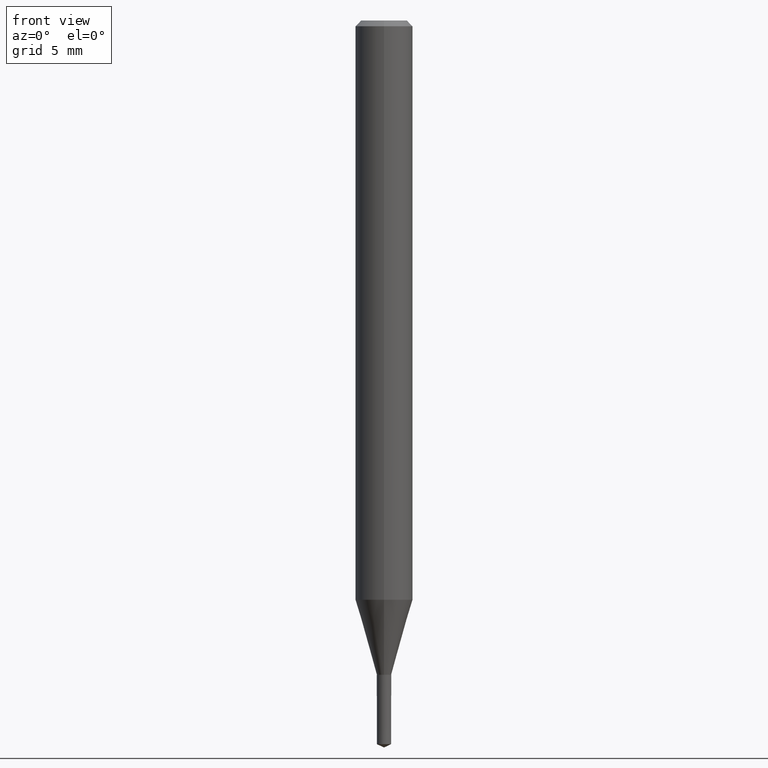
[diagram: clean part render]
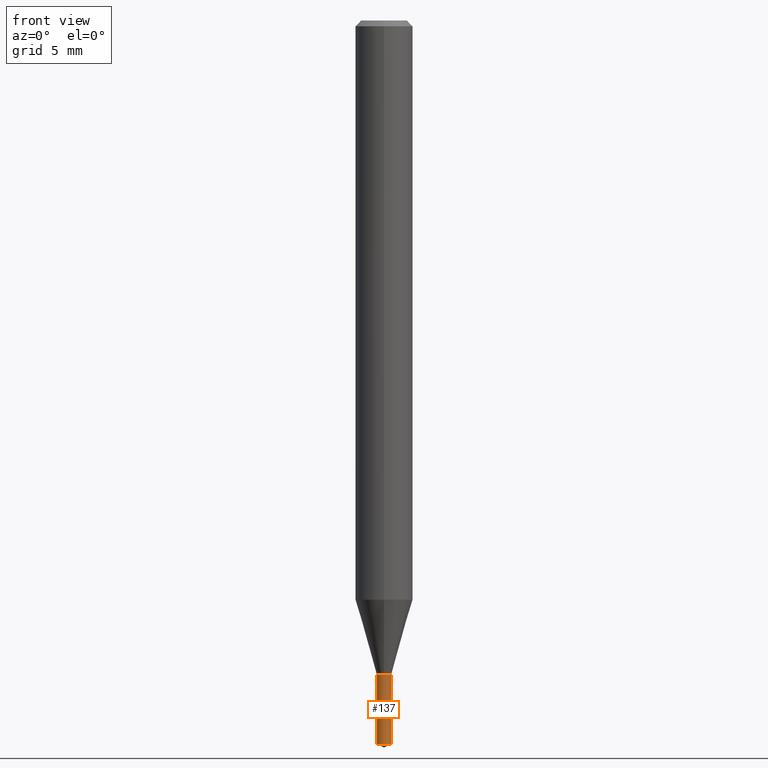
[diagram: same view with one face highlighted and labeled with its STEP entity id]
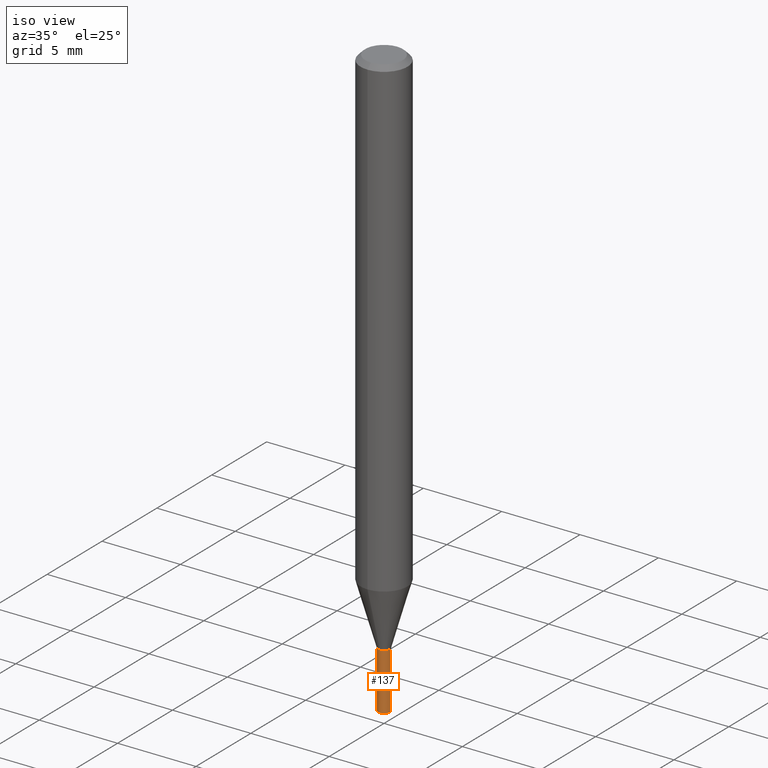
[diagram: same view with one face highlighted and labeled with its STEP entity id]
A machine part, front view. The second image highlights one B-rep face of the part: STEP entity #137.
A second angle (iso view) of the same face is appended — the face is thin or edge-on in the first view.
In plain terms, the highlighted conical surface has half-angle 0.016 deg.
Its self-contained STEP definition (entity closure, byte-faithful):
#109=EDGE_CURVE('',#185,#145,#248,.T.);
#135=EDGE_CURVE('',#145,#197,#276,.T.);
#137=ADVANCED_FACE('',(#278),#279,.T.);
#145=VERTEX_POINT('',#288);
#175=EDGE_CURVE('',#195,#197,#321,.T.);
#185=VERTEX_POINT('',#333);
#195=VERTEX_POINT('',#343);
#197=VERTEX_POINT('',#345);
#205=EDGE_CURVE('',#195,#185,#355,.T.);
#248=CIRCLE('',#394,0.376);
#276=LINE('',#430,#431);
#278=FACE_OUTER_BOUND('',#433,.T.);
#279=CONICAL_SURFACE('',#434,0.3755,0.000275851817022106);
#288=CARTESIAN_POINT('',(-0.376,0.0,-34.2));
#321=CIRCLE('',#489,0.375);
#333=CARTESIAN_POINT('',(0.376,4.60451989037214E-017,-34.2));
#343=CARTESIAN_POINT('',(0.375,4.59227382683391E-017,-37.82513463));
#345=CARTESIAN_POINT('',(-0.375,0.0,-37.82513463));
#355=LINE('',#532,#533);
#394=AXIS2_PLACEMENT_3D('',#574,#575,#576);
#430=CARTESIAN_POINT('',(-0.3755,-4.59839685860302E-017,-36.012567315));
#431=VECTOR('',#602,1.0);
#433=EDGE_LOOP('',(#604,#605,#606,#607));
#434=AXIS2_PLACEMENT_3D('',#608,#609,#610);
#489=AXIS2_PLACEMENT_3D('',#660,#661,#662);
#532=CARTESIAN_POINT('',(0.3755,4.59839685860303E-017,-36.012567315));
#533=VECTOR('',#702,1.0);
#574=CARTESIAN_POINT('',(0.0,0.0,-34.2));
#575=DIRECTION('',(0.0,0.0,-1.0));
#576=DIRECTION('',(-1.0,0.0,0.0));
#602=DIRECTION('',(0.000275851813523651,3.37809883554488E-020,-0.999999961952888));
#604=ORIENTED_EDGE('',*,*,#135,.T.);
#605=ORIENTED_EDGE('',*,*,#175,.F.);
#606=ORIENTED_EDGE('',*,*,#205,.T.);
#607=ORIENTED_EDGE('',*,*,#109,.T.);
#608=CARTESIAN_POINT('',(0.0,0.0,-36.012567315));
#609=DIRECTION('',(-0.0,-0.0,1.0));
#610=DIRECTION('',(-1.0,0.0,0.0));
#660=CARTESIAN_POINT('',(0.0,0.0,-37.82513463));
#661=DIRECTION('',(0.0,0.0,-1.0));
#662=DIRECTION('',(-1.0,0.0,0.0));
#702=DIRECTION('',(0.000275851813523651,3.37809883554488E-020,0.999999961952888));